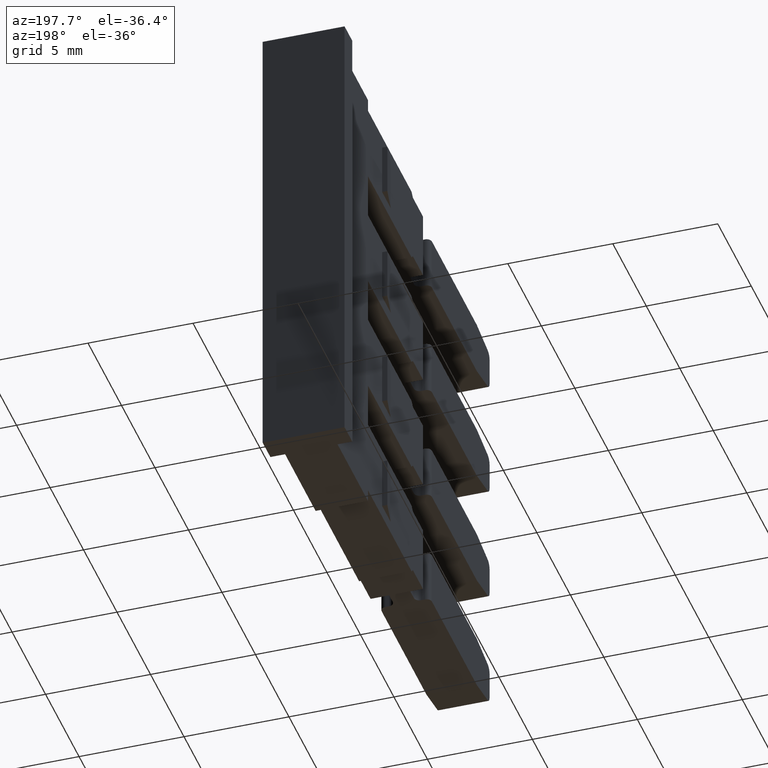
[diagram: clean part render]
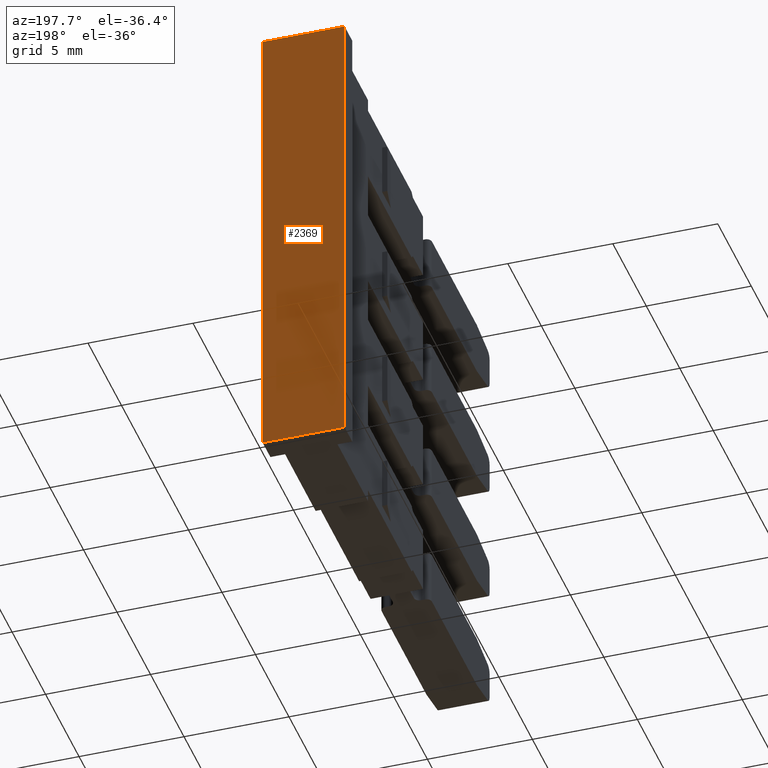
[diagram: same view with one face highlighted and labeled with its STEP entity id]
A machine part, auxiliary view. The second image highlights one B-rep face of the part: STEP entity #2369.
In plain terms, the highlighted planar face has unit normal (-0, 1, 0).
Its self-contained STEP definition (entity closure, byte-faithful):
#291 = EDGE_LOOP ( 'NONE', ( #5641, #5713, #5652, #5688 ) ) ;
#574 = LINE ( 'NONE', #589, #1717 ) ;
#584 = DIRECTION ( 'NONE',  ( 1.734374079839205100E-028, -6.606529101504750500E-015, 1.000000000000000000 ) ) ;
#589 = CARTESIAN_POINT ( 'NONE',  ( 1456.068071211366000, 1009.692679537520100, -112.3308473691034000 ) ) ;
#620 = LINE ( 'NONE', #658, #1730 ) ;
#658 = CARTESIAN_POINT ( 'NONE',  ( 1457.871626077922200, 1009.692679537512000, -77.04999999999265000 ) ) ;
#677 = LINE ( 'NONE', #695, #1738 ) ;
#684 = DIRECTION ( 'NONE',  ( -1.000000000000000000, 4.794056557034578200E-028, -5.145373498329340500E-015 ) ) ;
#690 = DIRECTION ( 'NONE',  ( 1.000000000000000000, -1.591874026890570400E-028, -1.715124499443520100E-015 ) ) ;
#695 = CARTESIAN_POINT ( 'NONE',  ( 1457.871626077922200, 1009.692679537498100, -99.64999999998745700 ) ) ;
#705 = LINE ( 'NONE', #724, #1765 ) ;
#724 = CARTESIAN_POINT ( 'NONE',  ( 1459.968071211366100, 1009.692679537520100, -112.3308473691034000 ) ) ;
#728 = DIRECTION ( 'NONE',  ( -1.734374079839205100E-028, 6.606529101504750500E-015, -1.000000000000000000 ) ) ;
#1422 = AXIS2_PLACEMENT_3D ( 'NONE', #4580, #4572, #4558 ) ;
#1717 = VECTOR ( 'NONE', #584, 1000.000000000000000 ) ;
#1730 = VECTOR ( 'NONE', #684, 1000.000000000000000 ) ;
#1738 = VECTOR ( 'NONE', #690, 1000.000000000000000 ) ;
#1765 = VECTOR ( 'NONE', #728, 1000.000000000000000 ) ;
#1959 = EDGE_CURVE ( 'NONE', #5250, #5324, #574, .T. ) ;
#1981 = EDGE_CURVE ( 'NONE', #5293, #5324, #620, .T. ) ;
#1990 = EDGE_CURVE ( 'NONE', #5250, #5259, #677, .T. ) ;
#2002 = EDGE_CURVE ( 'NONE', #5293, #5259, #705, .T. ) ;
#2369 = ADVANCED_FACE ( 'NONE', ( #4567 ), #4589, .T. ) ;
#3408 = CARTESIAN_POINT ( 'NONE',  ( 1459.968071211366100, 1009.692679537500100, -99.64999999998741500 ) ) ;
#3428 = CARTESIAN_POINT ( 'NONE',  ( 1459.968071211366100, 1009.692679537514100, -77.04999999999265000 ) ) ;
#3448 = CARTESIAN_POINT ( 'NONE',  ( 1456.068071211366000, 1009.692679537500100, -99.64999999998745700 ) ) ;
#3521 = CARTESIAN_POINT ( 'NONE',  ( 1456.068071211366000, 1009.692679537514100, -77.04999999999267900 ) ) ;
#4558 = DIRECTION ( 'NONE',  ( -1.000000000000000000, -2.625242473304434000E-014, 0.0000000000000000000 ) ) ;
#4567 = FACE_OUTER_BOUND ( 'NONE', #291, .T. ) ;
#4572 = DIRECTION ( 'NONE',  ( -2.625242473304434000E-014, 1.000000000000000000, 6.606529101504750500E-015 ) ) ;
#4580 = CARTESIAN_POINT ( 'NONE',  ( 1459.718071211365900, 1009.692679537520100, -112.3308473691034000 ) ) ;
#4589 = PLANE ( 'NONE',  #1422 ) ;
#5250 = VERTEX_POINT ( 'NONE', #3448 ) ;
#5259 = VERTEX_POINT ( 'NONE', #3408 ) ;
#5293 = VERTEX_POINT ( 'NONE', #3428 ) ;
#5324 = VERTEX_POINT ( 'NONE', #3521 ) ;
#5641 = ORIENTED_EDGE ( 'NONE', *, *, #1959, .T. ) ;
#5652 = ORIENTED_EDGE ( 'NONE', *, *, #2002, .T. ) ;
#5688 = ORIENTED_EDGE ( 'NONE', *, *, #1990, .F. ) ;
#5713 = ORIENTED_EDGE ( 'NONE', *, *, #1981, .F. ) ;